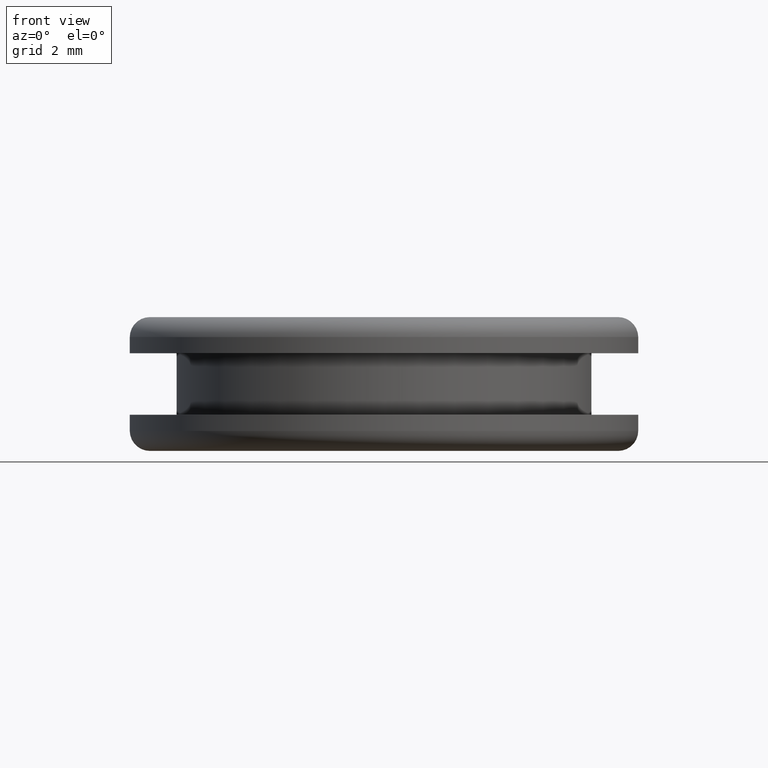
[diagram: clean part render]
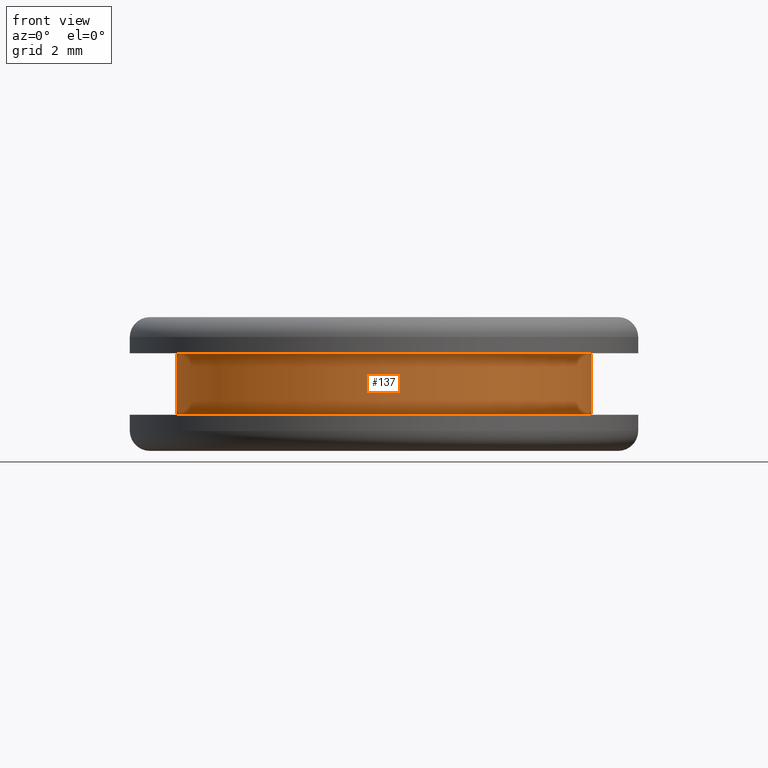
[diagram: same view with one face highlighted and labeled with its STEP entity id]
A machine part, front view. The second image highlights one B-rep face of the part: STEP entity #137.
In plain terms, the highlighted cylindrical surface (partial cylindrical patch) has radius 7.75 mm, axis along (0, 0, -1).
Its self-contained STEP definition (entity closure, byte-faithful):
#7 = CARTESIAN_POINT ( 'NONE',  ( 98.31085506629669600, 0.0000000000000000000, 0.0000000000000000000 ) ) ;
#15 = EDGE_LOOP ( 'NONE', ( #473, #342, #421, #455 ) ) ;
#31 = VERTEX_POINT ( 'NONE', #323 ) ;
#38 = DIRECTION ( 'NONE',  ( 0.0000000000000000000, 0.0000000000000000000, -1.000000000000000000 ) ) ;
#67 = DIRECTION ( 'NONE',  ( 0.0000000000000000000, 0.0000000000000000000, -1.000000000000000000 ) ) ;
#84 = VERTEX_POINT ( 'NONE', #416 ) ;
#137 = ADVANCED_FACE ( 'NONE', ( #435 ), #411, .T. ) ;
#138 = CARTESIAN_POINT ( 'NONE',  ( 113.8108550663360900, 9.491012693416113100E-016, 0.0000000000000000000 ) ) ;
#153 = EDGE_CURVE ( 'NONE', #270, #84, #349, .T. ) ;
#169 = VERTEX_POINT ( 'NONE', #217 ) ;
#175 = EDGE_CURVE ( 'NONE', #270, #31, #212, .T. ) ;
#182 = CARTESIAN_POINT ( 'NONE',  ( 106.0608550663163900, 0.0000000000000000000, 141.3502122310739800 ) ) ;
#185 = DIRECTION ( 'NONE',  ( -1.000000000000000000, 0.0000000000000000000, 0.0000000000000000000 ) ) ;
#201 = AXIS2_PLACEMENT_3D ( 'NONE', #182, #436, #360 ) ;
#206 = EDGE_CURVE ( 'NONE', #31, #169, #431, .T. ) ;
#212 = LINE ( 'NONE', #138, #415 ) ;
#217 = CARTESIAN_POINT ( 'NONE',  ( 98.31085506629669600, 0.0000000000000000000, 139.0502122310740000 ) ) ;
#235 = DIRECTION ( 'NONE',  ( 0.0000000000000000000, 0.0000000000000000000, -1.000000000000000000 ) ) ;
#257 = VECTOR ( 'NONE', #235, 1000.000000000000000 ) ;
#270 = VERTEX_POINT ( 'NONE', #339 ) ;
#295 = CARTESIAN_POINT ( 'NONE',  ( 106.0608550663163900, 0.0000000000000000000, 0.0000000000000000000 ) ) ;
#300 = EDGE_CURVE ( 'NONE', #84, #169, #330, .T. ) ;
#323 = CARTESIAN_POINT ( 'NONE',  ( 113.8108550663360900, 9.491012693416115100E-016, 139.0502122310740000 ) ) ;
#330 = LINE ( 'NONE', #7, #257 ) ;
#331 = CARTESIAN_POINT ( 'NONE',  ( 106.0608550663163900, 0.0000000000000000000, 139.0502122310740000 ) ) ;
#339 = CARTESIAN_POINT ( 'NONE',  ( 113.8108550663360900, 9.491012693416115100E-016, 141.3502122310739800 ) ) ;
#342 = ORIENTED_EDGE ( 'NONE', *, *, #153, .T. ) ;
#349 = CIRCLE ( 'NONE', #201, 7.750000000019699800 ) ;
#360 = DIRECTION ( 'NONE',  ( -1.000000000000000000, 0.0000000000000000000, 0.0000000000000000000 ) ) ;
#370 = DIRECTION ( 'NONE',  ( -1.000000000000000000, 0.0000000000000000000, 0.0000000000000000000 ) ) ;
#375 = DIRECTION ( 'NONE',  ( 0.0000000000000000000, 0.0000000000000000000, -1.000000000000000000 ) ) ;
#389 = AXIS2_PLACEMENT_3D ( 'NONE', #295, #38, #185 ) ;
#411 = CYLINDRICAL_SURFACE ( 'NONE', #389, 7.750000000019699800 ) ;
#415 = VECTOR ( 'NONE', #375, 1000.000000000000000 ) ;
#416 = CARTESIAN_POINT ( 'NONE',  ( 98.31085506629669600, 0.0000000000000000000, 141.3502122310739800 ) ) ;
#421 = ORIENTED_EDGE ( 'NONE', *, *, #300, .T. ) ;
#431 = CIRCLE ( 'NONE', #433, 7.750000000019699800 ) ;
#433 = AXIS2_PLACEMENT_3D ( 'NONE', #331, #67, #370 ) ;
#435 = FACE_OUTER_BOUND ( 'NONE', #15, .T. ) ;
#436 = DIRECTION ( 'NONE',  ( 0.0000000000000000000, 0.0000000000000000000, -1.000000000000000000 ) ) ;
#455 = ORIENTED_EDGE ( 'NONE', *, *, #206, .F. ) ;
#473 = ORIENTED_EDGE ( 'NONE', *, *, #175, .F. ) ;